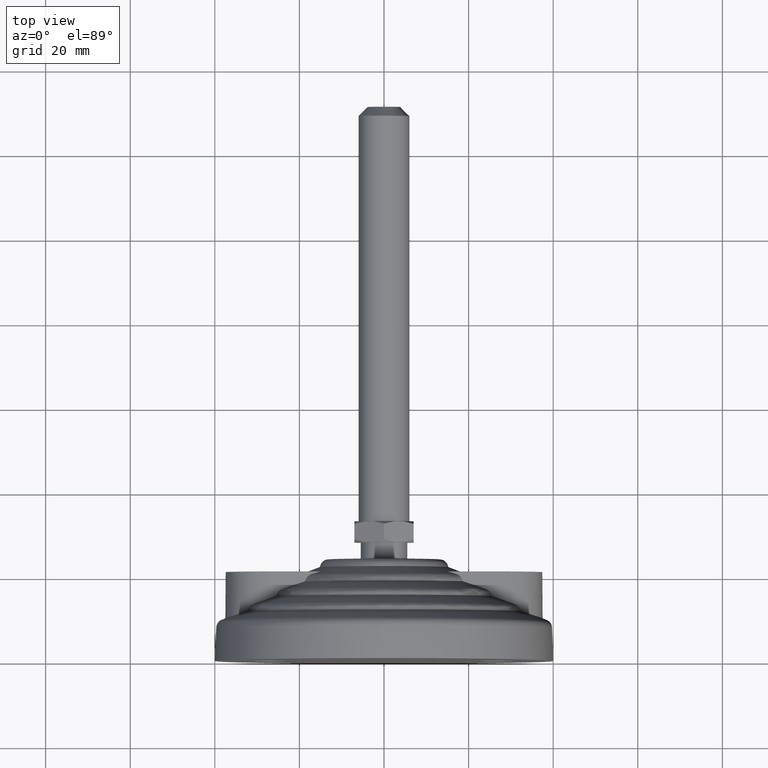
[diagram: clean part render]
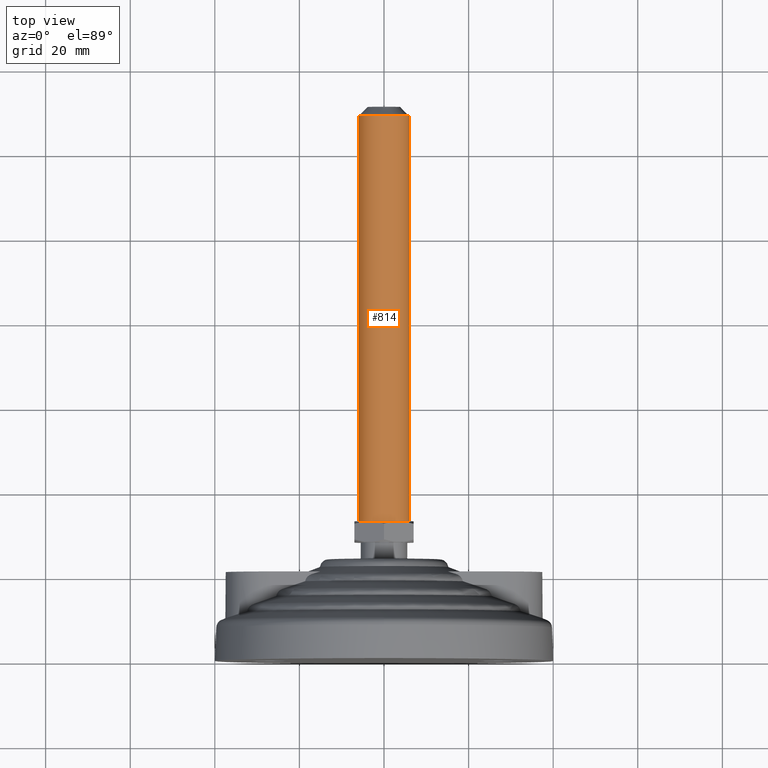
[diagram: same view with one face highlighted and labeled with its STEP entity id]
A machine part, top view. The second image highlights one B-rep face of the part: STEP entity #814.
In plain terms, the highlighted cylindrical surface (bore or boss wall) has radius 6 mm, axis along (0, -1, 0).
Its self-contained STEP definition (entity closure, byte-faithful):
#63=CYLINDRICAL_SURFACE('',#946,6.);
#153=FACE_OUTER_BOUND('',#204,.T.);
#204=EDGE_LOOP('',(#702,#703,#704,#705));
#237=LINE('',#1578,#264);
#264=VECTOR('',#1141,6.);
#312=CIRCLE('',#944,6.);
#314=CIRCLE('',#947,6.);
#379=VERTEX_POINT('',#1570);
#381=VERTEX_POINT('',#1576);
#490=EDGE_CURVE('',#379,#379,#312,.T.);
#493=EDGE_CURVE('',#381,#381,#314,.T.);
#494=EDGE_CURVE('',#381,#379,#237,.T.);
#702=ORIENTED_EDGE('',*,*,#493,.T.);
#703=ORIENTED_EDGE('',*,*,#494,.T.);
#704=ORIENTED_EDGE('',*,*,#490,.F.);
#705=ORIENTED_EDGE('',*,*,#494,.F.);
#814=ADVANCED_FACE('',(#153),#63,.T.);
#944=AXIS2_PLACEMENT_3D('',#1571,#1132,#1133);
#946=AXIS2_PLACEMENT_3D('',#1575,#1137,#1138);
#947=AXIS2_PLACEMENT_3D('',#1577,#1139,#1140);
#1132=DIRECTION('center_axis',(0.,1.,0.));
#1133=DIRECTION('ref_axis',(1.,0.,0.));
#1137=DIRECTION('center_axis',(0.,-1.,0.));
#1138=DIRECTION('ref_axis',(1.,0.,0.));
#1139=DIRECTION('center_axis',(0.,1.,0.));
#1140=DIRECTION('ref_axis',(1.,0.,0.));
#1141=DIRECTION('',(0.,1.,0.));
#1570=CARTESIAN_POINT('',(-6.,128.853,7.34763812293426E-16));
#1571=CARTESIAN_POINT('Origin',(0.,128.853,0.));
#1575=CARTESIAN_POINT('Origin',(0.,80.9265,0.));
#1576=CARTESIAN_POINT('',(-6.,33.,7.34763812293426E-16));
#1577=CARTESIAN_POINT('Origin',(0.,33.,0.));
#1578=CARTESIAN_POINT('',(-6.,80.9265,-7.34788079488412E-16));